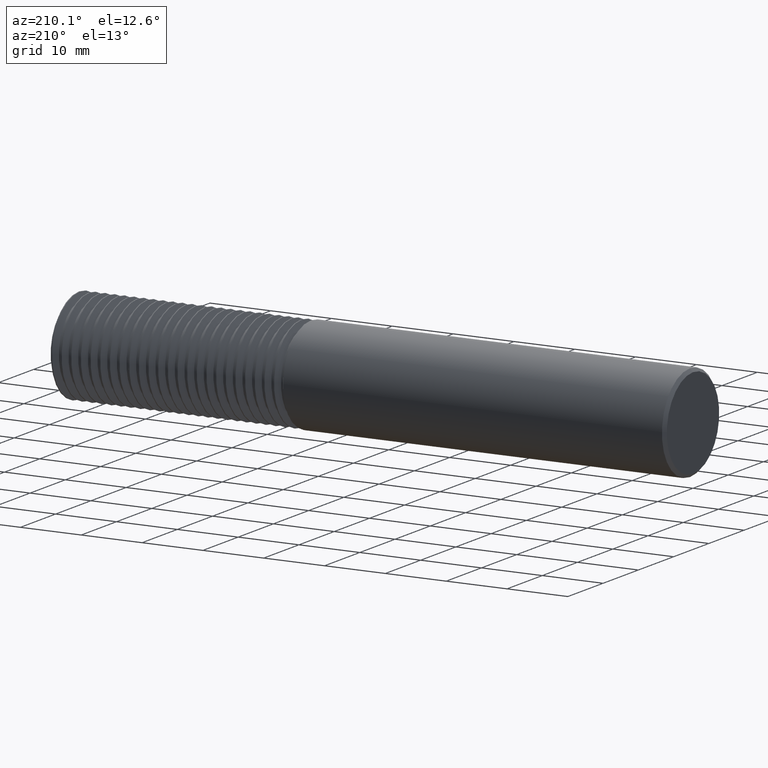
[diagram: clean part render]
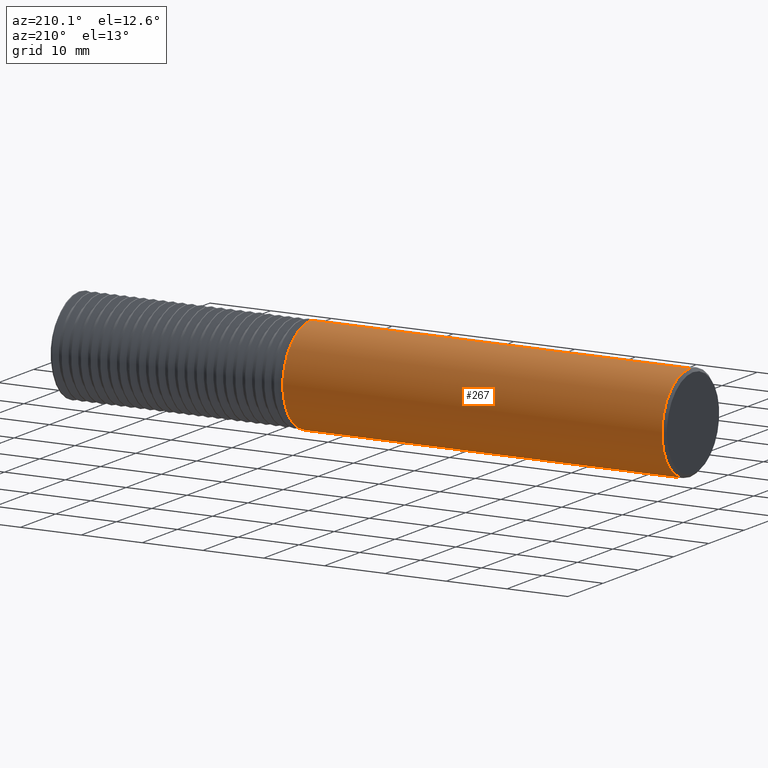
[diagram: same view with one face highlighted and labeled with its STEP entity id]
A machine part, auxiliary view. The second image highlights one B-rep face of the part: STEP entity #267.
In plain terms, the highlighted cylindrical surface (partial cylindrical patch) has radius 7.9337 mm, axis along (1, -0, -0).
Its self-contained STEP definition (entity closure, byte-faithful):
#126 = VECTOR ( 'NONE', #2028, 39.37007874015748143 ) ;
#167 = DIRECTION ( 'NONE',  ( 1.000000000000000000, -0.000000000000000000, -0.000000000000000000 ) ) ;
#267 = ADVANCED_FACE ( 'NONE', ( #3744 ), #2875, .T. ) ;
#499 = VERTEX_POINT ( 'NONE', #2354 ) ;
#709 = ORIENTED_EDGE ( 'NONE', *, *, #2919, .T. ) ;
#852 = AXIS2_PLACEMENT_3D ( 'NONE', #1917, #3507, #4719 ) ;
#1125 = DIRECTION ( 'NONE',  ( 0.000000000000000000, 0.000000000000000000, 1.000000000000000000 ) ) ;
#1221 = EDGE_LOOP ( 'NONE', ( #3708, #709, #1896, #2212 ) ) ;
#1538 = CARTESIAN_POINT ( 'NONE',  ( 4.000000000000000000, 3.825184277136757839E-17, 0.3123500000000000165 ) ) ;
#1559 = EDGE_CURVE ( 'NONE', #4811, #2374, #4173, .T. ) ;
#1896 = ORIENTED_EDGE ( 'NONE', *, *, #1559, .T. ) ;
#1917 = CARTESIAN_POINT ( 'NONE',  ( 2.473484135958313956, 0.000000000000000000, 0.000000000000000000 ) ) ;
#2026 = CARTESIAN_POINT ( 'NONE',  ( 0.02000000000000033348, 3.825184277136757839E-17, 0.3123500000000000165 ) ) ;
#2028 = DIRECTION ( 'NONE',  ( 1.000000000000000000, -0.000000000000000000, -0.000000000000000000 ) ) ;
#2212 = ORIENTED_EDGE ( 'NONE', *, *, #3557, .F. ) ;
#2354 = CARTESIAN_POINT ( 'NONE',  ( 0.02000000000000033348, 0.000000000000000000, -0.3123500000000000165 ) ) ;
#2374 = VERTEX_POINT ( 'NONE', #2619 ) ;
#2394 = DIRECTION ( 'NONE',  ( 1.000000000000000000, -0.000000000000000000, -0.000000000000000000 ) ) ;
#2552 = EDGE_CURVE ( 'NONE', #499, #3957, #4399, .T. ) ;
#2600 = AXIS2_PLACEMENT_3D ( 'NONE', #3273, #167, #3349 ) ;
#2619 = CARTESIAN_POINT ( 'NONE',  ( 2.473484135958313956, 3.825184277136755990E-17, -0.3123499999999999055 ) ) ;
#2671 = AXIS2_PLACEMENT_3D ( 'NONE', #4655, #2394, #1125 ) ;
#2685 = LINE ( 'NONE', #1538, #3266 ) ;
#2875 = CYLINDRICAL_SURFACE ( 'NONE', #2600, 0.3123500000000000165 ) ;
#2919 = EDGE_CURVE ( 'NONE', #3957, #4811, #2685, .T. ) ;
#3127 = DIRECTION ( 'NONE',  ( 1.000000000000000000, -0.000000000000000000, -0.000000000000000000 ) ) ;
#3207 = LINE ( 'NONE', #3295, #126 ) ;
#3266 = VECTOR ( 'NONE', #3127, 39.37007874015748143 ) ;
#3273 = CARTESIAN_POINT ( 'NONE',  ( 4.000000000000000000, 0.000000000000000000, 0.000000000000000000 ) ) ;
#3295 = CARTESIAN_POINT ( 'NONE',  ( 4.000000000000000000, 0.000000000000000000, -0.3123500000000000165 ) ) ;
#3349 = DIRECTION ( 'NONE',  ( 0.000000000000000000, 0.000000000000000000, -1.000000000000000000 ) ) ;
#3507 = DIRECTION ( 'NONE',  ( -1.000000000000000000, -0.000000000000000000, -0.000000000000000000 ) ) ;
#3557 = EDGE_CURVE ( 'NONE', #499, #2374, #3207, .T. ) ;
#3708 = ORIENTED_EDGE ( 'NONE', *, *, #2552, .T. ) ;
#3744 = FACE_OUTER_BOUND ( 'NONE', #1221, .T. ) ;
#3957 = VERTEX_POINT ( 'NONE', #2026 ) ;
#4173 = CIRCLE ( 'NONE', #852, 0.3123500000000000165 ) ;
#4399 = CIRCLE ( 'NONE', #2671, 0.3123500000000000165 ) ;
#4551 = CARTESIAN_POINT ( 'NONE',  ( 2.473484135958313956, 0.000000000000000000, 0.3123499999999999055 ) ) ;
#4655 = CARTESIAN_POINT ( 'NONE',  ( 0.02000000000000033348, 0.000000000000000000, 0.000000000000000000 ) ) ;
#4719 = DIRECTION ( 'NONE',  ( 0.000000000000000000, 0.000000000000000000, 1.000000000000000000 ) ) ;
#4811 = VERTEX_POINT ( 'NONE', #4551 ) ;